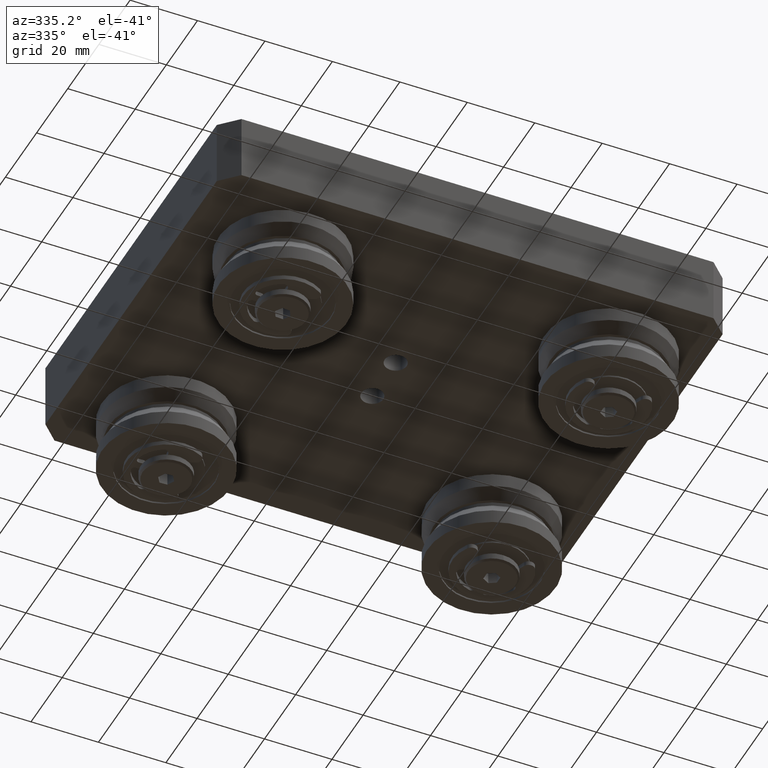
[diagram: clean part render]
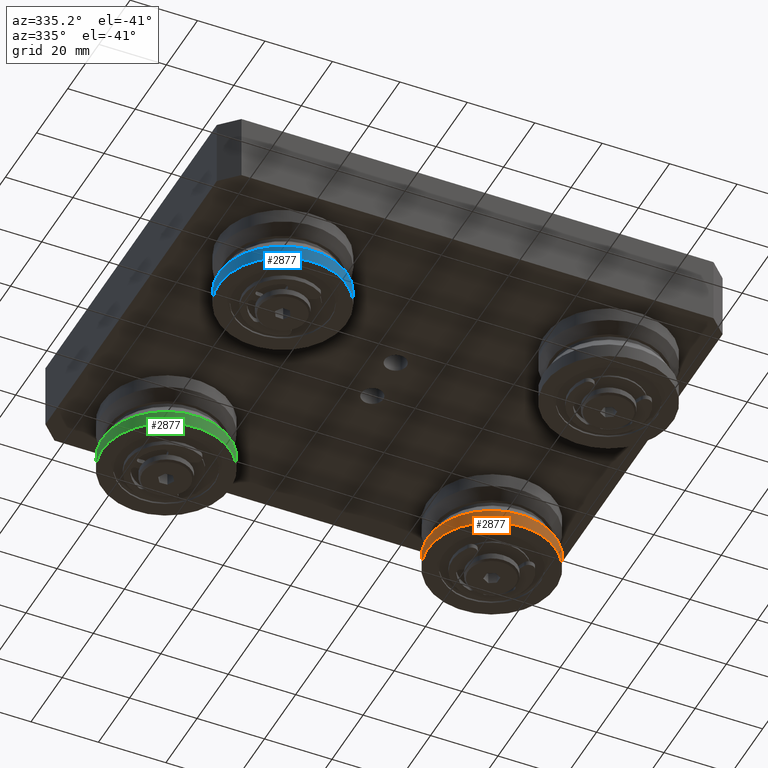
[diagram: same view with three faces highlighted in distinct colors, each labeled with its STEP entity id]
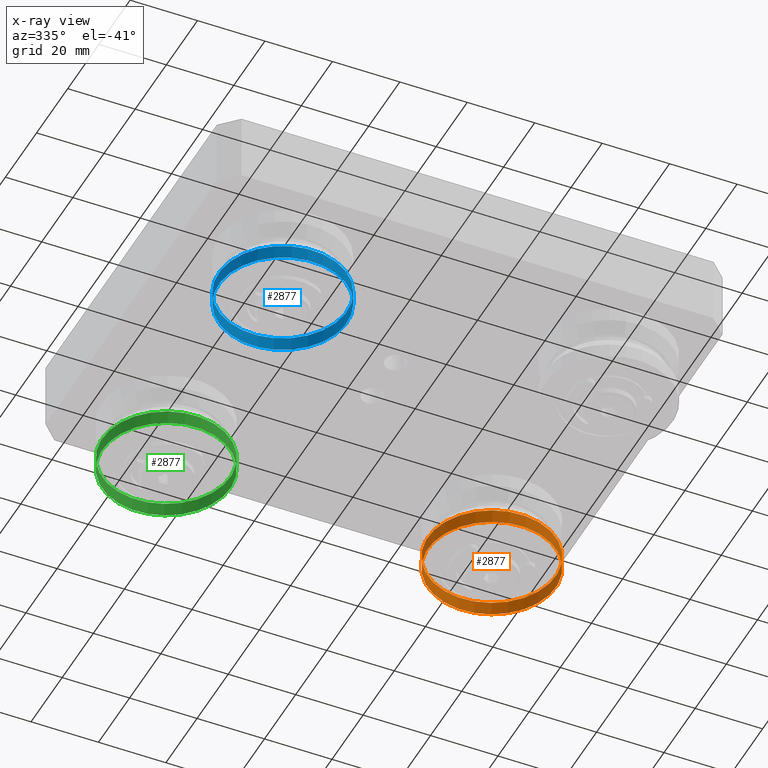
[diagram: x-ray of the same camera — body ghosted, the three highlighted faces saturated]
A machine part, auxiliary view with three faces highlighted in distinct colors.
The next image is the same camera in x-ray (body ghosted, the three faces saturated) — at least one of them is partly hidden behind the body in this view.
Their STEP definitions:

[orange] entity #2877 — the highlighted cylindrical surface (bore or boss wall) has radius 19 mm, axis along (0, -0, 1).
#204=CYLINDRICAL_SURFACE('',#3359,19.);
#358=CIRCLE('',#3358,19.);
#359=CIRCLE('',#3360,19.);
#538=FACE_OUTER_BOUND('',#752,.T.);
#752=EDGE_LOOP('',(#2382,#2383,#2384,#2385));
#981=LINE('',#4969,#1194);
#1194=VECTOR('',#4099,19.);
#1406=VERTEX_POINT('',#4964);
#1407=VERTEX_POINT('',#4967);
#1742=EDGE_CURVE('',#1406,#1406,#358,.T.);
#1743=EDGE_CURVE('',#1407,#1407,#359,.T.);
#1744=EDGE_CURVE('',#1407,#1406,#981,.T.);
#2382=ORIENTED_EDGE('',*,*,#1743,.F.);
#2383=ORIENTED_EDGE('',*,*,#1744,.T.);
#2384=ORIENTED_EDGE('',*,*,#1742,.T.);
#2385=ORIENTED_EDGE('',*,*,#1744,.F.);
#2877=ADVANCED_FACE('',(#538),#204,.T.);
#3358=AXIS2_PLACEMENT_3D('',#4965,#4093,#4094);
#3359=AXIS2_PLACEMENT_3D('',#4966,#4095,#4096);
#3360=AXIS2_PLACEMENT_3D('',#4968,#4097,#4098);
#4093=DIRECTION('center_axis',(1.,0.,0.));
#4094=DIRECTION('ref_axis',(0.,1.,0.));
#4095=DIRECTION('center_axis',(1.,0.,0.));
#4096=DIRECTION('ref_axis',(0.,1.,0.));
#4097=DIRECTION('center_axis',(1.,0.,0.));
#4098=DIRECTION('ref_axis',(0.,1.,0.));
#4099=DIRECTION('',(-1.,0.,0.));
#4964=CARTESIAN_POINT('',(-8.5,-19.,-2.32682891837997E-15));
#4965=CARTESIAN_POINT('Origin',(-8.5,0.,0.));
#4966=CARTESIAN_POINT('Origin',(-6.43541743770058,0.,0.));
#4967=CARTESIAN_POINT('',(-4.37083487540115,-19.,-2.32682891837997E-15));
#4968=CARTESIAN_POINT('Origin',(-4.37083487540115,0.,0.));
#4969=CARTESIAN_POINT('',(-6.43541743770058,-19.,-2.32682891837997E-15));

[blue] entity #2877 — the highlighted cylindrical surface (bore or boss wall) has radius 19 mm, axis along (0, -0, 1).
#204=CYLINDRICAL_SURFACE('',#3359,19.);
#358=CIRCLE('',#3358,19.);
#359=CIRCLE('',#3360,19.);
#538=FACE_OUTER_BOUND('',#752,.T.);
#752=EDGE_LOOP('',(#2382,#2383,#2384,#2385));
#981=LINE('',#4969,#1194);
#1194=VECTOR('',#4099,19.);
#1406=VERTEX_POINT('',#4964);
#1407=VERTEX_POINT('',#4967);
#1742=EDGE_CURVE('',#1406,#1406,#358,.T.);
#1743=EDGE_CURVE('',#1407,#1407,#359,.T.);
#1744=EDGE_CURVE('',#1407,#1406,#981,.T.);
#2382=ORIENTED_EDGE('',*,*,#1743,.F.);
#2383=ORIENTED_EDGE('',*,*,#1744,.T.);
#2384=ORIENTED_EDGE('',*,*,#1742,.T.);
#2385=ORIENTED_EDGE('',*,*,#1744,.F.);
#2877=ADVANCED_FACE('',(#538),#204,.T.);
#3358=AXIS2_PLACEMENT_3D('',#4965,#4093,#4094);
#3359=AXIS2_PLACEMENT_3D('',#4966,#4095,#4096);
#3360=AXIS2_PLACEMENT_3D('',#4968,#4097,#4098);
#4093=DIRECTION('center_axis',(1.,0.,0.));
#4094=DIRECTION('ref_axis',(0.,1.,0.));
#4095=DIRECTION('center_axis',(1.,0.,0.));
#4096=DIRECTION('ref_axis',(0.,1.,0.));
#4097=DIRECTION('center_axis',(1.,0.,0.));
#4098=DIRECTION('ref_axis',(0.,1.,0.));
#4099=DIRECTION('',(-1.,0.,0.));
#4964=CARTESIAN_POINT('',(-8.5,-19.,-2.32682891837997E-15));
#4965=CARTESIAN_POINT('Origin',(-8.5,0.,0.));
#4966=CARTESIAN_POINT('Origin',(-6.43541743770058,0.,0.));
#4967=CARTESIAN_POINT('',(-4.37083487540115,-19.,-2.32682891837997E-15));
#4968=CARTESIAN_POINT('Origin',(-4.37083487540115,0.,0.));
#4969=CARTESIAN_POINT('',(-6.43541743770058,-19.,-2.32682891837997E-15));

[green] entity #2877 — the highlighted cylindrical surface (bore or boss wall) has radius 19 mm, axis along (-0, 0, 1).
#204=CYLINDRICAL_SURFACE('',#3359,19.);
#358=CIRCLE('',#3358,19.);
#359=CIRCLE('',#3360,19.);
#538=FACE_OUTER_BOUND('',#752,.T.);
#752=EDGE_LOOP('',(#2382,#2383,#2384,#2385));
#981=LINE('',#4969,#1194);
#1194=VECTOR('',#4099,19.);
#1406=VERTEX_POINT('',#4964);
#1407=VERTEX_POINT('',#4967);
#1742=EDGE_CURVE('',#1406,#1406,#358,.T.);
#1743=EDGE_CURVE('',#1407,#1407,#359,.T.);
#1744=EDGE_CURVE('',#1407,#1406,#981,.T.);
#2382=ORIENTED_EDGE('',*,*,#1743,.F.);
#2383=ORIENTED_EDGE('',*,*,#1744,.T.);
#2384=ORIENTED_EDGE('',*,*,#1742,.T.);
#2385=ORIENTED_EDGE('',*,*,#1744,.F.);
#2877=ADVANCED_FACE('',(#538),#204,.T.);
#3358=AXIS2_PLACEMENT_3D('',#4965,#4093,#4094);
#3359=AXIS2_PLACEMENT_3D('',#4966,#4095,#4096);
#3360=AXIS2_PLACEMENT_3D('',#4968,#4097,#4098);
#4093=DIRECTION('center_axis',(1.,0.,0.));
#4094=DIRECTION('ref_axis',(0.,1.,0.));
#4095=DIRECTION('center_axis',(1.,0.,0.));
#4096=DIRECTION('ref_axis',(0.,1.,0.));
#4097=DIRECTION('center_axis',(1.,0.,0.));
#4098=DIRECTION('ref_axis',(0.,1.,0.));
#4099=DIRECTION('',(-1.,0.,0.));
#4964=CARTESIAN_POINT('',(-8.5,-19.,-2.32682891837997E-15));
#4965=CARTESIAN_POINT('Origin',(-8.5,0.,0.));
#4966=CARTESIAN_POINT('Origin',(-6.43541743770058,0.,0.));
#4967=CARTESIAN_POINT('',(-4.37083487540115,-19.,-2.32682891837997E-15));
#4968=CARTESIAN_POINT('Origin',(-4.37083487540115,0.,0.));
#4969=CARTESIAN_POINT('',(-6.43541743770058,-19.,-2.32682891837997E-15));